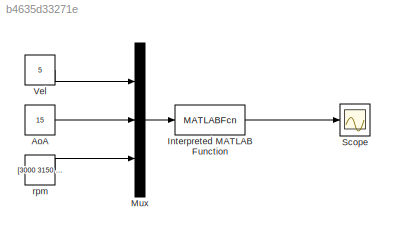
MODEL slx_b4635d33271e
KIND model
CONFIG AbsTol = auto
CONFIG EnableMultiTasking = off
CONFIG FixedStep = auto
CONFIG MaxStep = 0.2
CONFIG MinStep = 0.1
CONFIG RelTol = 1e-3
CONFIG SampleTimeConstraint = Unconstrained
CONFIG Solver = VariableStepAuto
CONFIG SolverName = VariableStepAuto
CONFIG StartTime = 0.0
CONFIG StopTime = 1
BLOCK [Constant] AoA
  Value = 15
BLOCK [MATLABFcn] Interpreted MATLAB Function
  MATLABFcn = fcnRUNSIMU
  Ports = [1, 1]
BLOCK [Mux] Mux
  DisplayOption = bar
  Inputs = 3
  Ports = [3, 1]
BLOCK [Scope] Scope
  Floating = off
  NumInputPorts = 1
  Ports = [1]
  ScopeSpecificationString = Simulink.scopes.TimeScopeBlockCfg('CurrentConfiguration', extmgr.ConfigurationSet(extmgr.Configuration('Core','General UI',true),extmgr.Configuration('Core','Source UI',true),extmgr.Configuration('Sources','WiredSimulink',true),extmgr.Configuration('Visuals','Time Domain',true,'SerializedDisplays',{struct('MinYLimReal','0.0113812','MaxYLimReal','0.0113889','YLabelReal','','MinYLimMag','0.0113812',...<+1437ch>
BLOCK [Constant] Vel 
  Value = 5
BLOCK [Constant] rpm 
  Value = [3000 3150 3220 3215]
LINE AoA:1 -> Mux:2
LINE Interpreted MATLAB Function:1 -> Scope:1
LINE Mux:1 -> Interpreted MATLAB Function:1
LINE Vel :1 -> Mux:1
LINE rpm :1 -> Mux:3
